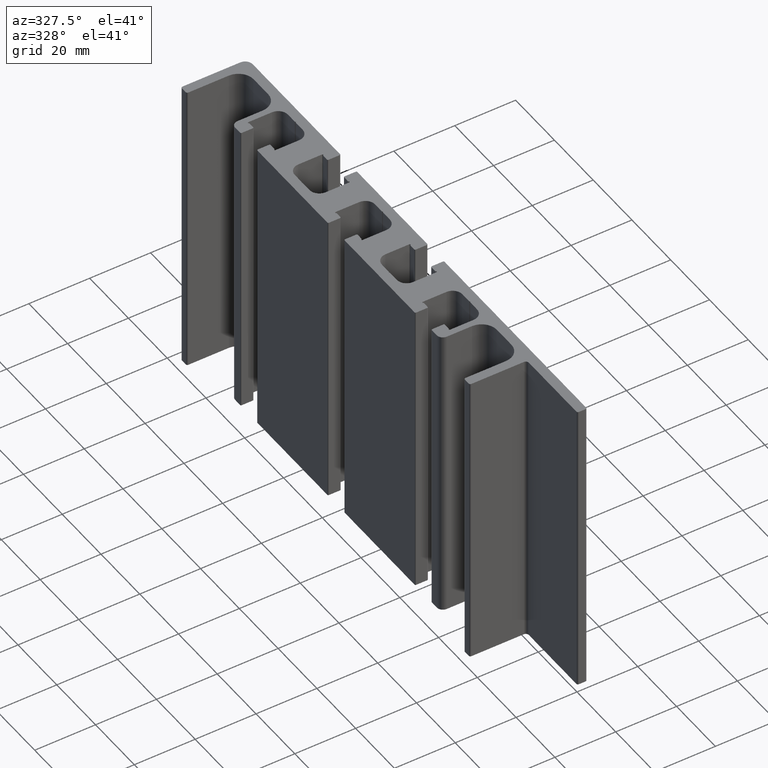
[diagram: clean part render]
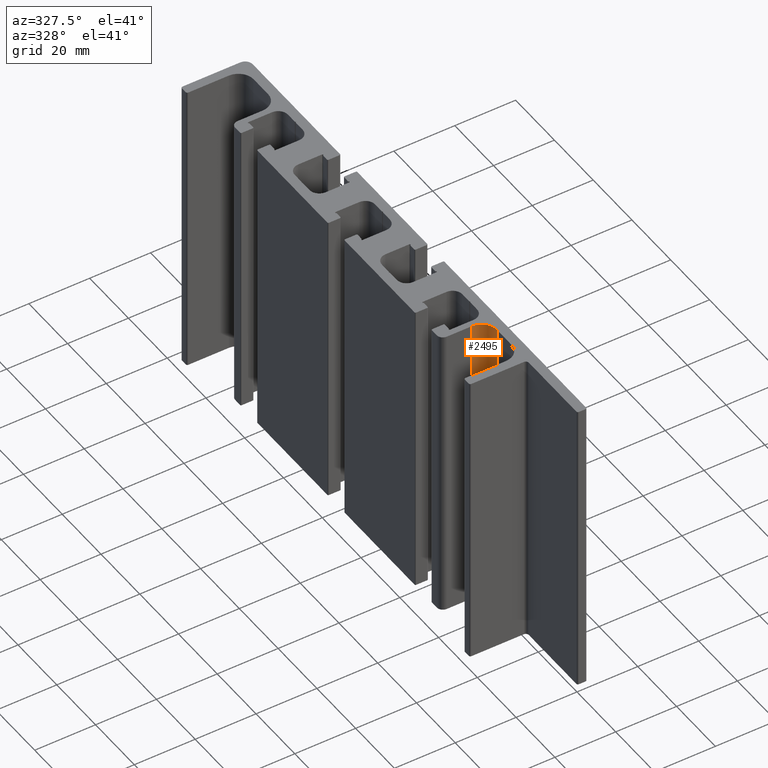
[diagram: same view with one face highlighted and labeled with its STEP entity id]
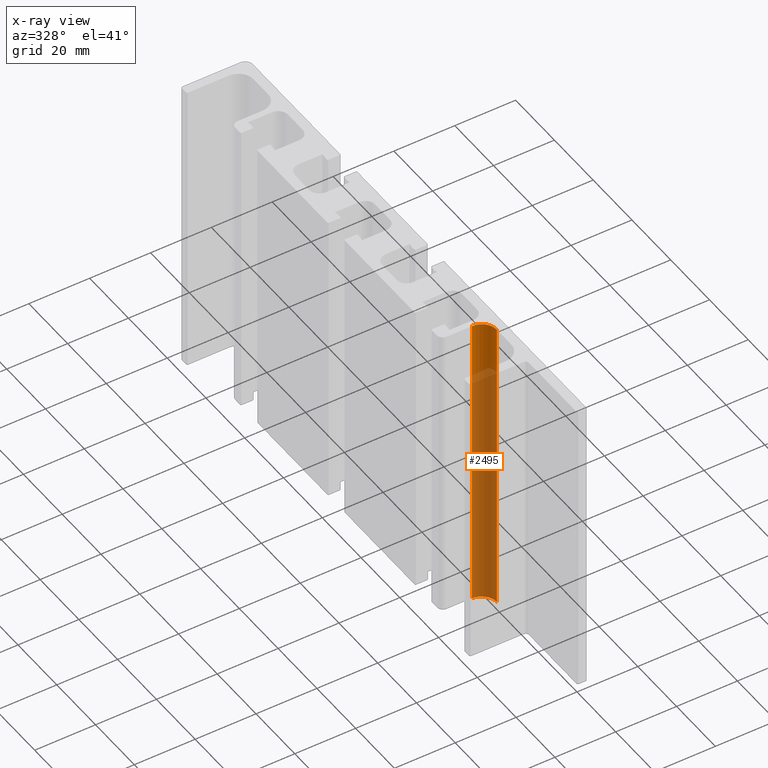
[diagram: x-ray of the same camera — body ghosted, the highlighted face saturated]
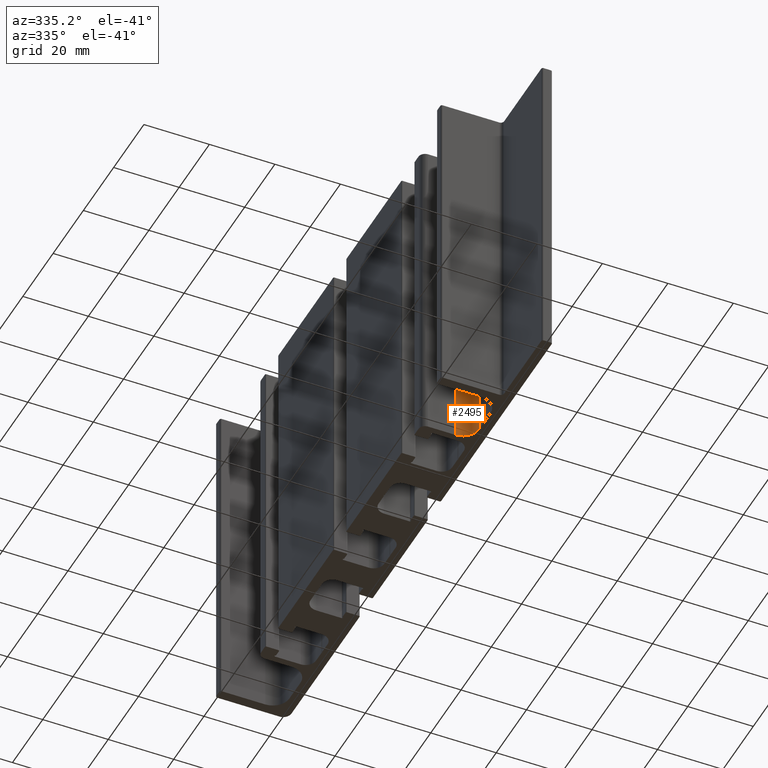
[diagram: same view with one face highlighted and labeled with its STEP entity id]
A machine part, auxiliary view. The second image highlights one B-rep face of the part: STEP entity #2495.
The next image is the same camera in x-ray: the body ghosted, the highlighted face saturated — about 83% of this face is hidden behind the body in this view.
A second angle (auxiliary view) of the same face is appended — the face is thin or edge-on in the first view.
In plain terms, the highlighted cylindrical surface (edge-blend (fillet) strip) has radius 5 mm, axis along (0, 0, 1).
Its self-contained STEP definition (entity closure, byte-faithful):
#121=CIRCLE('',#2729,5.);
#122=CIRCLE('',#2730,5.);
#176=CYLINDRICAL_SURFACE('',#2728,5.);
#299=FACE_OUTER_BOUND('',#424,.T.);
#424=EDGE_LOOP('',(#2052,#2053,#2054,#2055));
#428=LINE('',#3468,#689);
#687=LINE('',#4197,#948);
#689=VECTOR('',#2738,100.);
#948=VECTOR('',#3451,100.);
#949=VERTEX_POINT('',#3464);
#951=VERTEX_POINT('',#3467);
#1193=VERTEX_POINT('',#4193);
#1194=VERTEX_POINT('',#4195);
#1196=EDGE_CURVE('',#949,#951,#428,.T.);
#1561=EDGE_CURVE('',#1193,#1194,#687,.T.);
#1562=EDGE_CURVE('',#1193,#949,#121,.T.);
#1563=EDGE_CURVE('',#951,#1194,#122,.T.);
#2052=ORIENTED_EDGE('',*,*,#1562,.F.);
#2053=ORIENTED_EDGE('',*,*,#1561,.T.);
#2054=ORIENTED_EDGE('',*,*,#1563,.F.);
#2055=ORIENTED_EDGE('',*,*,#1196,.F.);
#2495=ADVANCED_FACE('',(#299),#176,.F.);
#2728=AXIS2_PLACEMENT_3D('',#4198,#3452,#3453);
#2729=AXIS2_PLACEMENT_3D('',#4199,#3454,#3455);
#2730=AXIS2_PLACEMENT_3D('',#4200,#3456,#3457);
#2738=DIRECTION('',(0.,0.,1.));
#3451=DIRECTION('',(0.,0.,1.));
#3452=DIRECTION('center_axis',(0.,0.,1.));
#3453=DIRECTION('ref_axis',(1.,-7.105427357601E-15,0.));
#3454=DIRECTION('center_axis',(0.,0.,1.));
#3455=DIRECTION('ref_axis',(1.,-7.105427357601E-15,0.));
#3456=DIRECTION('center_axis',(0.,0.,-1.));
#3457=DIRECTION('ref_axis',(1.,-7.105427357601E-15,0.));
#3464=CARTESIAN_POINT('',(-5.19999999999999,-54.0000000000002,0.));
#3467=CARTESIAN_POINT('',(-5.19999999999999,-54.0000000000002,100.));
#3468=CARTESIAN_POINT('',(-5.19999999999999,-54.0000000000002,0.));
#4193=CARTESIAN_POINT('',(-0.199999999999987,-59.0000000000002,0.));
#4195=CARTESIAN_POINT('',(-0.199999999999987,-59.0000000000002,100.));
#4197=CARTESIAN_POINT('',(-0.199999999999987,-59.0000000000002,0.));
#4198=CARTESIAN_POINT('Origin',(-5.19999999999999,-59.0000000000002,0.));
#4199=CARTESIAN_POINT('Origin',(-5.19999999999999,-59.0000000000002,0.));
#4200=CARTESIAN_POINT('Origin',(-5.19999999999999,-59.0000000000002,100.));